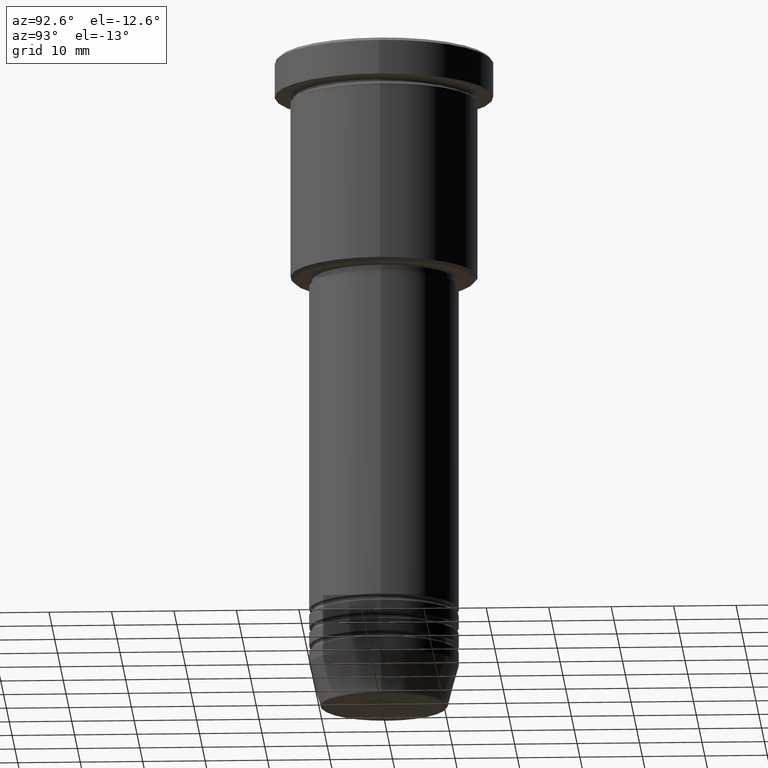
[diagram: clean part render]
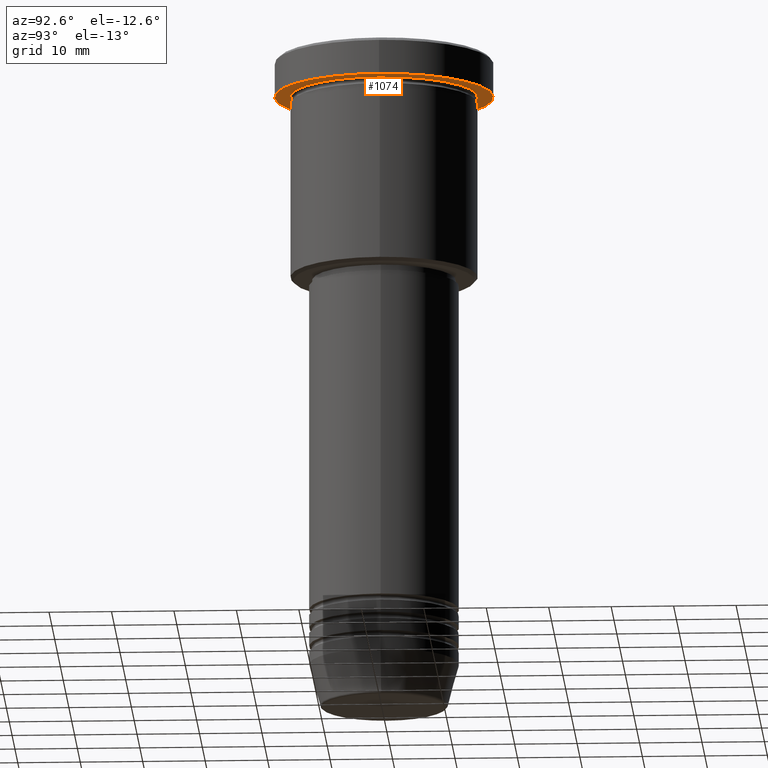
[diagram: same view with one face highlighted and labeled with its STEP entity id]
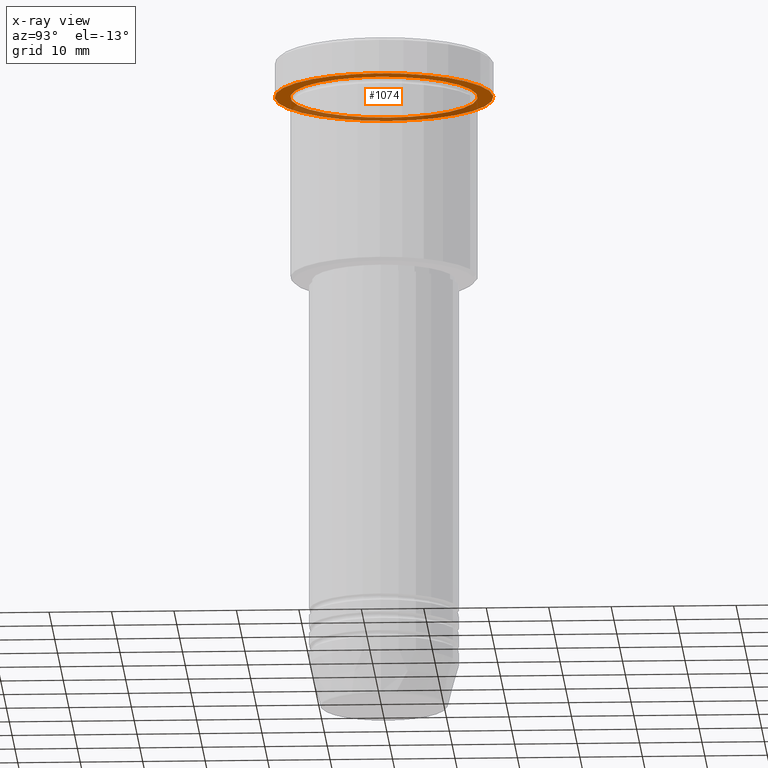
[diagram: x-ray of the same camera — body ghosted, the highlighted face saturated]
A machine part, auxiliary view. The second image highlights one B-rep face of the part: STEP entity #1074.
The next image is the same camera in x-ray: the body ghosted, the highlighted face saturated — about 35% of this face is hidden behind the body in this view.
In plain terms, the highlighted planar face has unit normal (0, 0, -1).
Its self-contained STEP definition (entity closure, byte-faithful):
#37 = CIRCLE ( 'NONE', #1052, 15.00000000000000000 ) ;
#61 = VERTEX_POINT ( 'NONE', #814 ) ;
#73 = CIRCLE ( 'NONE', #135, 17.50000000000000000 ) ;
#85 = EDGE_CURVE ( 'NONE', #723, #641, #73, .T. ) ;
#135 = AXIS2_PLACEMENT_3D ( 'NONE', #1080, #730, #892 ) ;
#175 = EDGE_LOOP ( 'NONE', ( #1056, #451 ) ) ;
#183 = CARTESIAN_POINT ( 'NONE',  ( 17.50000000000000000, 0.000000000000000000, -5.999999999999995559 ) ) ;
#189 = ORIENTED_EDGE ( 'NONE', *, *, #390, .F. ) ;
#214 = FACE_BOUND ( 'NONE', #175, .T. ) ;
#254 = AXIS2_PLACEMENT_3D ( 'NONE', #768, #579, #778 ) ;
#268 = EDGE_CURVE ( 'NONE', #61, #1183, #1038, .T. ) ;
#390 = EDGE_CURVE ( 'NONE', #641, #723, #439, .T. ) ;
#398 = FACE_OUTER_BOUND ( 'NONE', #928, .T. ) ;
#439 = CIRCLE ( 'NONE', #887, 17.50000000000000000 ) ;
#451 = ORIENTED_EDGE ( 'NONE', *, *, #268, .T. ) ;
#481 = DIRECTION ( 'NONE',  ( -0.000000000000000000, -0.000000000000000000, 1.000000000000000000 ) ) ;
#488 = CARTESIAN_POINT ( 'NONE',  ( -15.00000000000000000, 0.000000000000000000, -5.999999999999994671 ) ) ;
#497 = CARTESIAN_POINT ( 'NONE',  ( 0.000000000000000000, 0.000000000000000000, -5.999999999999995559 ) ) ;
#527 = ORIENTED_EDGE ( 'NONE', *, *, #85, .F. ) ;
#550 = CARTESIAN_POINT ( 'NONE',  ( 0.000000000000000000, 0.000000000000000000, -5.999999999999995559 ) ) ;
#579 = DIRECTION ( 'NONE',  ( 0.000000000000000000, 0.000000000000000000, -1.000000000000000000 ) ) ;
#599 = DIRECTION ( 'NONE',  ( -1.000000000000000000, 0.000000000000000000, 0.000000000000000000 ) ) ;
#641 = VERTEX_POINT ( 'NONE', #183 ) ;
#699 = EDGE_CURVE ( 'NONE', #1183, #61, #37, .T. ) ;
#723 = VERTEX_POINT ( 'NONE', #922 ) ;
#730 = DIRECTION ( 'NONE',  ( -0.000000000000000000, -0.000000000000000000, 1.000000000000000000 ) ) ;
#768 = CARTESIAN_POINT ( 'NONE',  ( 0.000000000000000000, 17.50000000000000000, -5.999999999999995559 ) ) ;
#778 = DIRECTION ( 'NONE',  ( -1.000000000000000000, 0.000000000000000000, -0.000000000000000000 ) ) ;
#799 = CARTESIAN_POINT ( 'NONE',  ( 0.000000000000000000, 0.000000000000000000, -5.999999999999995559 ) ) ;
#814 = CARTESIAN_POINT ( 'NONE',  ( 15.00000000000000000, 1.836970198721029589E-15, -5.999999999999994671 ) ) ;
#874 = DIRECTION ( 'NONE',  ( -0.000000000000000000, -0.000000000000000000, 1.000000000000000000 ) ) ;
#887 = AXIS2_PLACEMENT_3D ( 'NONE', #799, #1153, #1159 ) ;
#892 = DIRECTION ( 'NONE',  ( 1.000000000000000000, 0.000000000000000000, 0.000000000000000000 ) ) ;
#922 = CARTESIAN_POINT ( 'NONE',  ( -17.50000000000000000, 2.143131898507868248E-15, -5.999999999999995559 ) ) ;
#928 = EDGE_LOOP ( 'NONE', ( #189, #527 ) ) ;
#966 = PLANE ( 'NONE',  #254 ) ;
#1013 = AXIS2_PLACEMENT_3D ( 'NONE', #497, #874, #599 ) ;
#1038 = CIRCLE ( 'NONE', #1013, 15.00000000000000000 ) ;
#1052 = AXIS2_PLACEMENT_3D ( 'NONE', #550, #481, #1109 ) ;
#1056 = ORIENTED_EDGE ( 'NONE', *, *, #699, .T. ) ;
#1074 = ADVANCED_FACE ( 'NONE', ( #214, #398 ), #966, .T. ) ;
#1080 = CARTESIAN_POINT ( 'NONE',  ( 0.000000000000000000, 0.000000000000000000, -5.999999999999995559 ) ) ;
#1109 = DIRECTION ( 'NONE',  ( -1.000000000000000000, 0.000000000000000000, 0.000000000000000000 ) ) ;
#1153 = DIRECTION ( 'NONE',  ( -0.000000000000000000, -0.000000000000000000, 1.000000000000000000 ) ) ;
#1159 = DIRECTION ( 'NONE',  ( 1.000000000000000000, 0.000000000000000000, 0.000000000000000000 ) ) ;
#1183 = VERTEX_POINT ( 'NONE', #488 ) ;